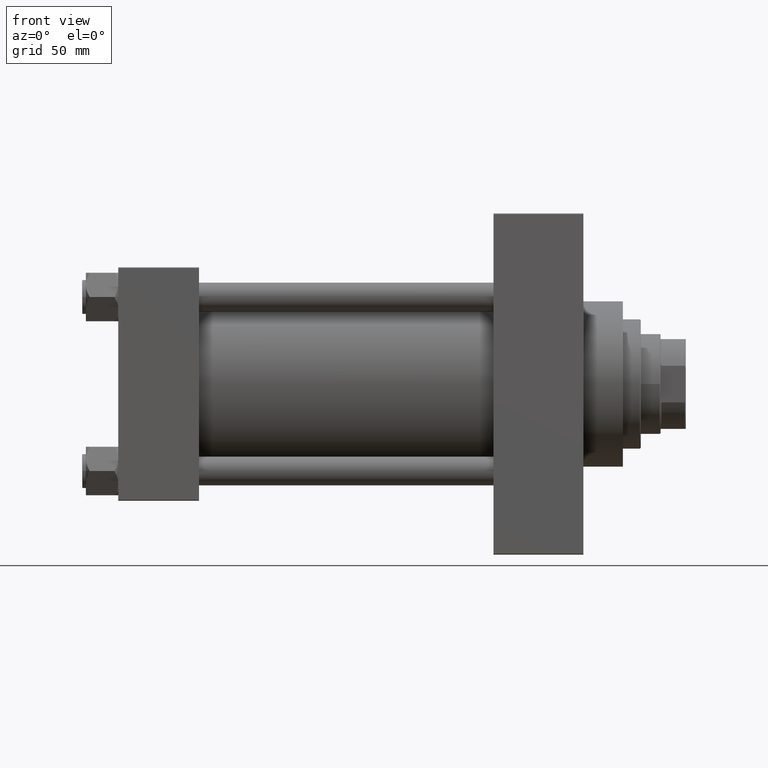
[diagram: clean part render]
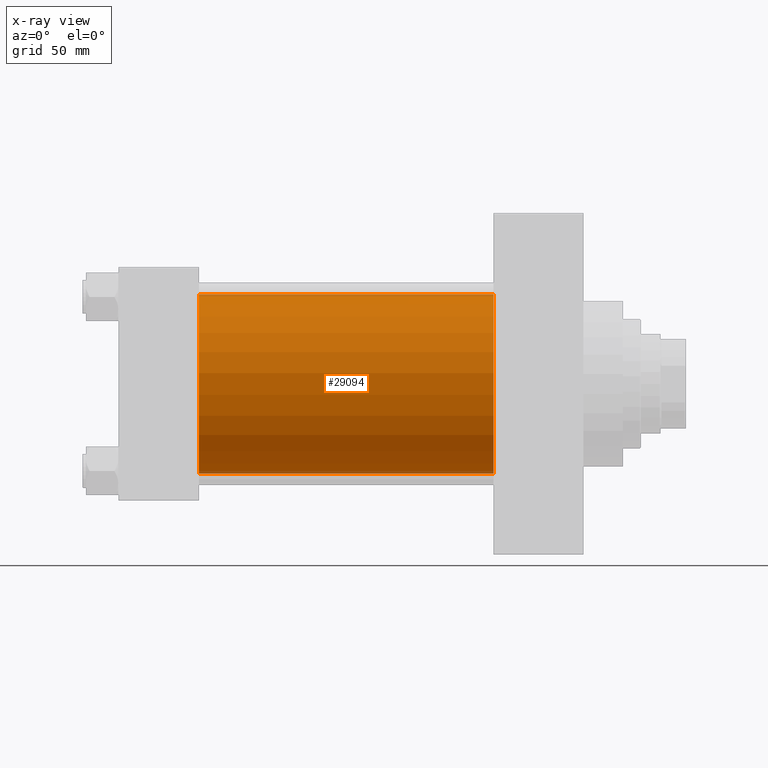
[diagram: x-ray — body ghosted, one internal face saturated and labeled with its STEP entity id]
A machine part, front view, then the same camera in x-ray: the body is ghosted and one INTERNAL B-rep face — a face not visible from any outside direction — is saturated and labeled: STEP entity #29094.
In plain terms, the highlighted cylindrical surface (partial cylindrical patch) has radius 50 mm, axis along (-1, -0, -0).
Its self-contained STEP definition (entity closure, byte-faithful):
#1088 = VERTEX_POINT ( 'NONE', #22390 ) ;
#2585 = CARTESIAN_POINT ( 'NONE',  ( 209.0000000000000284, 3.521148781771555838E-15, -50.00000000000000000 ) ) ;
#2726 = AXIS2_PLACEMENT_3D ( 'NONE', #39883, #13595, #5868 ) ;
#2788 = EDGE_CURVE ( 'NONE', #1088, #14562, #13454, .T. ) ;
#5822 = CIRCLE ( 'NONE', #2726, 50.00000000000000000 ) ;
#5868 = DIRECTION ( 'NONE',  ( 0.000000000000000000, 0.000000000000000000, -1.000000000000000000 ) ) ;
#6978 = ORIENTED_EDGE ( 'NONE', *, *, #37271, .T. ) ;
#10097 = VECTOR ( 'NONE', #35549, 1000.000000000000000 ) ;
#13454 = LINE ( 'NONE', #2585, #24291 ) ;
#13595 = DIRECTION ( 'NONE',  ( 1.000000000000000000, 0.000000000000000000, 0.000000000000000000 ) ) ;
#14562 = VERTEX_POINT ( 'NONE', #15687 ) ;
#14970 = EDGE_CURVE ( 'NONE', #33133, #14562, #20006, .T. ) ;
#15687 = CARTESIAN_POINT ( 'NONE',  ( 45.00000000000000000, 3.521148781771555838E-15, -50.00000000000000000 ) ) ;
#15857 = FACE_OUTER_BOUND ( 'NONE', #28044, .T. ) ;
#16054 = DIRECTION ( 'NONE',  ( 0.000000000000000000, 0.000000000000000000, -1.000000000000000000 ) ) ;
#19226 = CYLINDRICAL_SURFACE ( 'NONE', #33392, 50.00000000000000000 ) ;
#19714 = CARTESIAN_POINT ( 'NONE',  ( 209.0000000000000284, -2.602085213965210642E-15, 0.000000000000000000 ) ) ;
#20006 = CIRCLE ( 'NONE', #35436, 50.00000000000000000 ) ;
#22390 = CARTESIAN_POINT ( 'NONE',  ( 209.0000000000000284, 3.521148781771555838E-15, -50.00000000000000000 ) ) ;
#22710 = ORIENTED_EDGE ( 'NONE', *, *, #23341, .F. ) ;
#23341 = EDGE_CURVE ( 'NONE', #34658, #33133, #32178, .T. ) ;
#24291 = VECTOR ( 'NONE', #28180, 1000.000000000000000 ) ;
#28044 = EDGE_LOOP ( 'NONE', ( #6978, #47135, #39613, #22710 ) ) ;
#28103 = DIRECTION ( 'NONE',  ( 1.000000000000000000, 0.000000000000000000, 0.000000000000000000 ) ) ;
#28180 = DIRECTION ( 'NONE',  ( -1.000000000000000000, -0.000000000000000000, -0.000000000000000000 ) ) ;
#29094 = ADVANCED_FACE ( 'NONE', ( #15857 ), #19226, .F. ) ;
#30529 = CARTESIAN_POINT ( 'NONE',  ( 45.00000000000000000, -2.602085213965210642E-15, 50.00000000000000000 ) ) ;
#32178 = LINE ( 'NONE', #35070, #10097 ) ;
#33133 = VERTEX_POINT ( 'NONE', #30529 ) ;
#33392 = AXIS2_PLACEMENT_3D ( 'NONE', #19714, #46027, #33958 ) ;
#33958 = DIRECTION ( 'NONE',  ( 0.000000000000000000, 0.000000000000000000, 1.000000000000000000 ) ) ;
#34658 = VERTEX_POINT ( 'NONE', #43391 ) ;
#35070 = CARTESIAN_POINT ( 'NONE',  ( 209.0000000000000284, -2.602085213965210642E-15, 50.00000000000000000 ) ) ;
#35436 = AXIS2_PLACEMENT_3D ( 'NONE', #38712, #28103, #16054 ) ;
#35549 = DIRECTION ( 'NONE',  ( -1.000000000000000000, -0.000000000000000000, -0.000000000000000000 ) ) ;
#37271 = EDGE_CURVE ( 'NONE', #34658, #1088, #5822, .T. ) ;
#38712 = CARTESIAN_POINT ( 'NONE',  ( 45.00000000000000000, -2.602085213965210642E-15, 0.000000000000000000 ) ) ;
#39613 = ORIENTED_EDGE ( 'NONE', *, *, #14970, .F. ) ;
#39883 = CARTESIAN_POINT ( 'NONE',  ( 209.0000000000000284, -2.602085213965210642E-15, 0.000000000000000000 ) ) ;
#43391 = CARTESIAN_POINT ( 'NONE',  ( 209.0000000000000284, -2.602085213965210642E-15, 50.00000000000000000 ) ) ;
#46027 = DIRECTION ( 'NONE',  ( -1.000000000000000000, -0.000000000000000000, -0.000000000000000000 ) ) ;
#47135 = ORIENTED_EDGE ( 'NONE', *, *, #2788, .T. ) ;